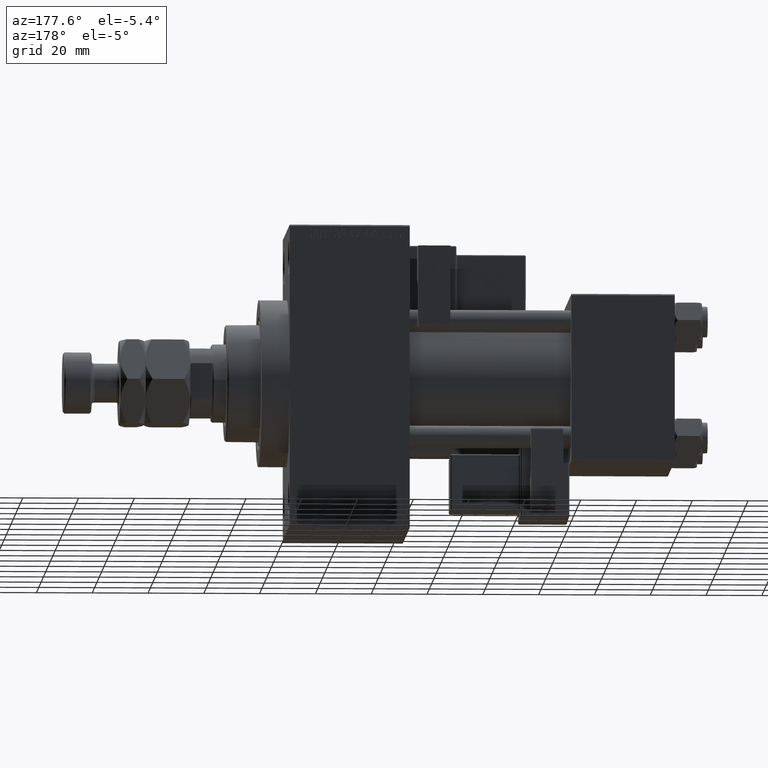
[diagram: clean part render]
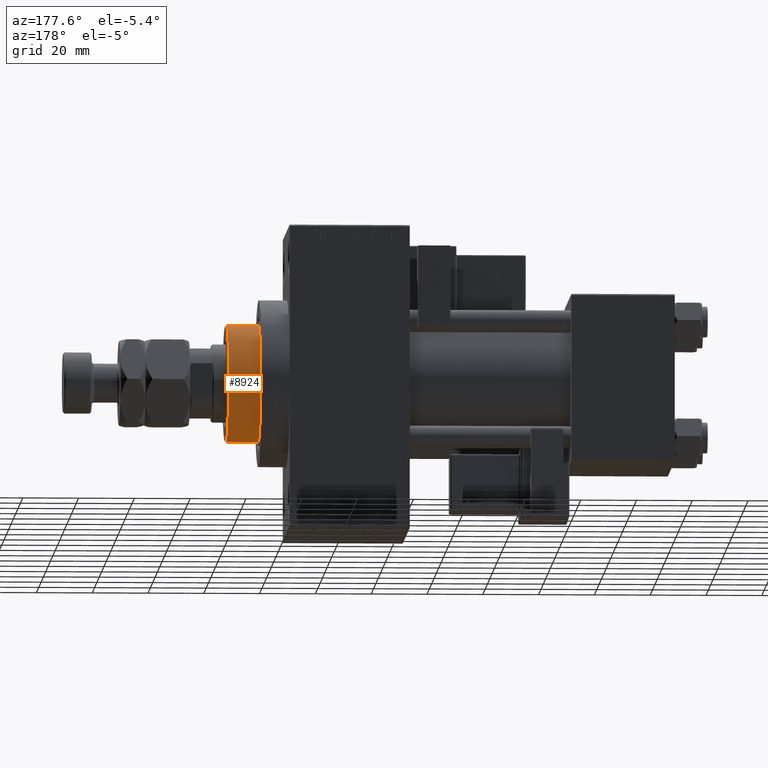
[diagram: same view with one face highlighted and labeled with its STEP entity id]
A machine part, auxiliary view. The second image highlights one B-rep face of the part: STEP entity #8924.
In plain terms, the highlighted cylindrical surface (partial cylindrical patch) has radius 21 mm, axis along (-1, 0, 0).
Its self-contained STEP definition (entity closure, byte-faithful):
#356 = EDGE_CURVE ( 'NONE', #38195, #21044, #32980, .T. ) ;
#2176 = ORIENTED_EDGE ( 'NONE', *, *, #41541, .T. ) ;
#3294 = AXIS2_PLACEMENT_3D ( 'NONE', #45538, #49961, #49705 ) ;
#4768 = VERTEX_POINT ( 'NONE', #13602 ) ;
#5234 = AXIS2_PLACEMENT_3D ( 'NONE', #47781, #15292, #43613 ) ;
#5500 = FACE_OUTER_BOUND ( 'NONE', #32650, .T. ) ;
#6897 = VERTEX_POINT ( 'NONE', #42361 ) ;
#7677 = CARTESIAN_POINT ( 'NONE',  ( 21.00000000000000000, 2.571758278209441661E-15, 55.26000000000000512 ) ) ;
#7929 = LINE ( 'NONE', #7677, #31354 ) ;
#8691 = VERTEX_POINT ( 'NONE', #26857 ) ;
#8924 = ADVANCED_FACE ( 'NONE', ( #5500 ), #25773, .T. ) ;
#9646 = DIRECTION ( 'NONE',  ( 1.000000000000000000, 0.000000000000000000, 0.000000000000000000 ) ) ;
#9925 = CARTESIAN_POINT ( 'NONE',  ( -21.00000000000000000, 0.000000000000000000, 43.25999999999999801 ) ) ;
#11490 = DIRECTION ( 'NONE',  ( -0.000000000000000000, -0.000000000000000000, -1.000000000000000000 ) ) ;
#13602 = CARTESIAN_POINT ( 'NONE',  ( 20.96385542168674831, -1.231570484631379969, 43.25999999999999801 ) ) ;
#14544 = DIRECTION ( 'NONE',  ( 1.000000000000000000, 0.000000000000000000, 0.000000000000000000 ) ) ;
#14768 = EDGE_CURVE ( 'NONE', #38195, #6897, #7929, .T. ) ;
#15292 = DIRECTION ( 'NONE',  ( 0.000000000000000000, 0.000000000000000000, 1.000000000000000000 ) ) ;
#16049 = CARTESIAN_POINT ( 'NONE',  ( 0.000000000000000000, 0.000000000000000000, 43.25999999999999801 ) ) ;
#18326 = AXIS2_PLACEMENT_3D ( 'NONE', #29403, #45262, #9646 ) ;
#19283 = CARTESIAN_POINT ( 'NONE',  ( -21.00000000000000000, 0.000000000000000000, 55.26000000000000512 ) ) ;
#20419 = CARTESIAN_POINT ( 'NONE',  ( -21.00000000000000000, 0.000000000000000000, 54.75999999999999091 ) ) ;
#21044 = VERTEX_POINT ( 'NONE', #20419 ) ;
#21745 = ORIENTED_EDGE ( 'NONE', *, *, #44952, .T. ) ;
#22568 = AXIS2_PLACEMENT_3D ( 'NONE', #16049, #47274, #36067 ) ;
#23846 = AXIS2_PLACEMENT_3D ( 'NONE', #34305, #46523, #14544 ) ;
#24706 = EDGE_CURVE ( 'NONE', #4768, #6897, #27445, .T. ) ;
#25773 = CYLINDRICAL_SURFACE ( 'NONE', #3294, 21.00000000000000000 ) ;
#26857 = CARTESIAN_POINT ( 'NONE',  ( -20.96385542168674476, -1.231570484631382856, 43.25999999999999801 ) ) ;
#27445 = CIRCLE ( 'NONE', #18326, 21.00000000000000000 ) ;
#28187 = DIRECTION ( 'NONE',  ( -0.000000000000000000, -0.000000000000000000, -1.000000000000000000 ) ) ;
#28772 = CARTESIAN_POINT ( 'NONE',  ( 21.00000000000000000, 2.571758278209441661E-15, 54.75999999999999091 ) ) ;
#29403 = CARTESIAN_POINT ( 'NONE',  ( 0.000000000000000000, 0.000000000000000000, 43.25999999999999801 ) ) ;
#31354 = VECTOR ( 'NONE', #28187, 1000.000000000000000 ) ;
#32650 = EDGE_LOOP ( 'NONE', ( #47270, #41853, #2176, #21745, #38103, #44405 ) ) ;
#32980 = CIRCLE ( 'NONE', #23846, 21.00000000000000000 ) ;
#34305 = CARTESIAN_POINT ( 'NONE',  ( 0.000000000000000000, 0.000000000000000000, 54.75999999999999091 ) ) ;
#34306 = CIRCLE ( 'NONE', #5234, 21.00000000000000000 ) ;
#34886 = LINE ( 'NONE', #19283, #37537 ) ;
#36067 = DIRECTION ( 'NONE',  ( 1.000000000000000000, 0.000000000000000000, 0.000000000000000000 ) ) ;
#37537 = VECTOR ( 'NONE', #11490, 1000.000000000000000 ) ;
#37779 = VERTEX_POINT ( 'NONE', #9925 ) ;
#38103 = ORIENTED_EDGE ( 'NONE', *, *, #44979, .T. ) ;
#38195 = VERTEX_POINT ( 'NONE', #28772 ) ;
#41541 = EDGE_CURVE ( 'NONE', #21044, #37779, #34886, .T. ) ;
#41853 = ORIENTED_EDGE ( 'NONE', *, *, #356, .T. ) ;
#42361 = CARTESIAN_POINT ( 'NONE',  ( 21.00000000000000000, 2.571758278209441661E-15, 43.25999999999999801 ) ) ;
#43613 = DIRECTION ( 'NONE',  ( 1.000000000000000000, 0.000000000000000000, 0.000000000000000000 ) ) ;
#44405 = ORIENTED_EDGE ( 'NONE', *, *, #24706, .T. ) ;
#44952 = EDGE_CURVE ( 'NONE', #37779, #8691, #44986, .T. ) ;
#44979 = EDGE_CURVE ( 'NONE', #8691, #4768, #34306, .T. ) ;
#44986 = CIRCLE ( 'NONE', #22568, 21.00000000000000000 ) ;
#45262 = DIRECTION ( 'NONE',  ( 0.000000000000000000, 0.000000000000000000, 1.000000000000000000 ) ) ;
#45538 = CARTESIAN_POINT ( 'NONE',  ( 0.000000000000000000, 0.000000000000000000, 55.26000000000000512 ) ) ;
#46523 = DIRECTION ( 'NONE',  ( 0.000000000000000000, 0.000000000000000000, -1.000000000000000000 ) ) ;
#47270 = ORIENTED_EDGE ( 'NONE', *, *, #14768, .F. ) ;
#47274 = DIRECTION ( 'NONE',  ( 0.000000000000000000, 0.000000000000000000, 1.000000000000000000 ) ) ;
#47781 = CARTESIAN_POINT ( 'NONE',  ( 0.000000000000000000, 0.000000000000000000, 43.25999999999999801 ) ) ;
#49705 = DIRECTION ( 'NONE',  ( -1.000000000000000000, 0.000000000000000000, 0.000000000000000000 ) ) ;
#49961 = DIRECTION ( 'NONE',  ( -0.000000000000000000, -0.000000000000000000, -1.000000000000000000 ) ) ;